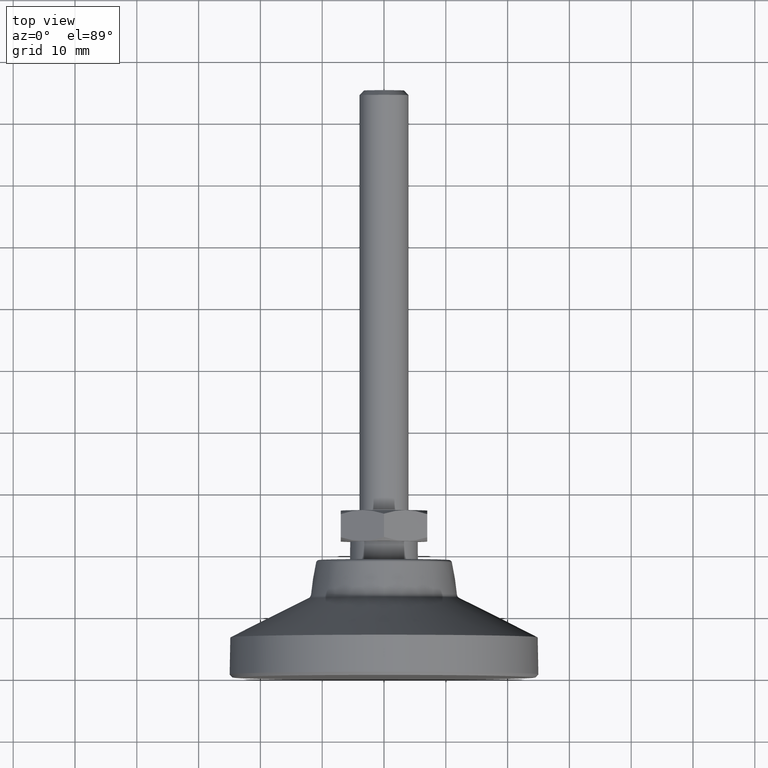
[diagram: clean part render]
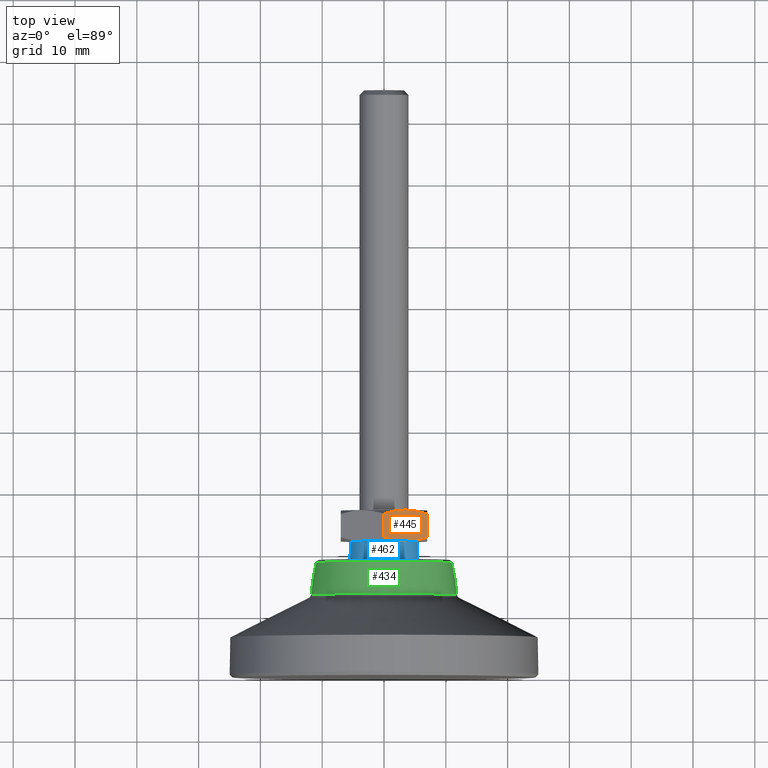
[diagram: same view with three faces highlighted in distinct colors, each labeled with its STEP entity id]
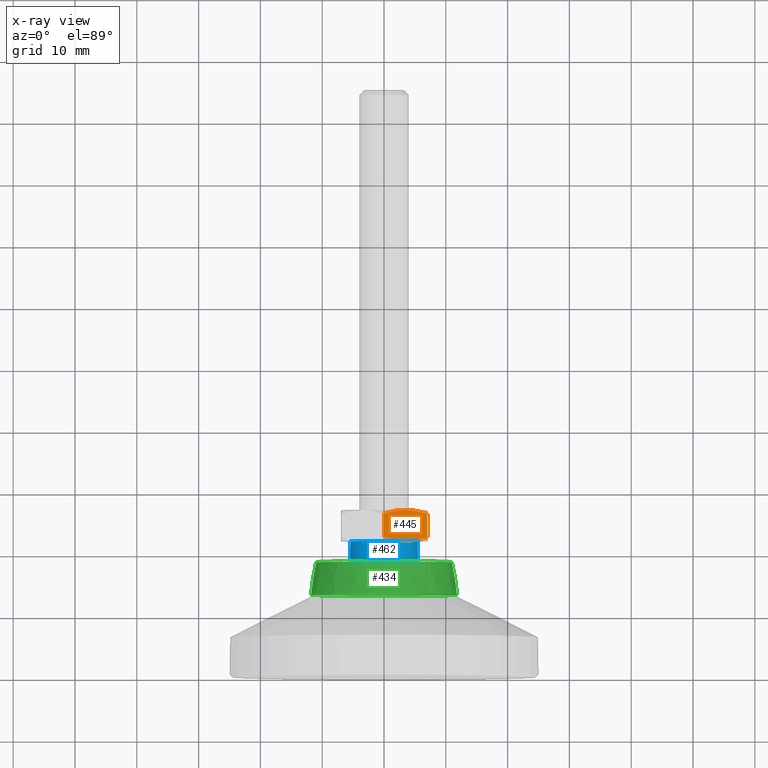
[diagram: x-ray of the same camera — body ghosted, the three highlighted faces saturated]
A machine part, top view with three faces highlighted in distinct colors.
The next image is the same camera in x-ray (body ghosted, the three faces saturated) — at least one of them is partly hidden behind the body in this view.
Their STEP definitions:

[orange] entity #445 — the highlighted planar face has unit normal (0.5, 0, 0.866).
#24=LINE('',#747,#30);
#25=LINE('',#773,#31);
#30=VECTOR('',#588,3.7495704353214);
#31=VECTOR('',#599,3.7495704353214);
#44=(
BOUNDED_CURVE()
B_SPLINE_CURVE(2,(#757,#758,#759),.UNSPECIFIED.,.F.,.F.)
B_SPLINE_CURVE_WITH_KNOTS((3,3),(-1.70144723055341,-1.00298742719398),
 .UNSPECIFIED.)
CURVE()
GEOMETRIC_REPRESENTATION_ITEM()
RATIONAL_B_SPLINE_CURVE((1.74230748895809,1.74230748895809,1.61721543938395))
REPRESENTATION_ITEM('')
);
#45=(
BOUNDED_CURVE()
B_SPLINE_CURVE(2,(#764,#765,#766),.UNSPECIFIED.,.F.,.F.)
B_SPLINE_CURVE_WITH_KNOTS((3,3),(1.00298742719398,1.70144723055341),
 .UNSPECIFIED.)
CURVE()
GEOMETRIC_REPRESENTATION_ITEM()
RATIONAL_B_SPLINE_CURVE((1.61721543938395,1.74230748895809,1.74230748895809))
REPRESENTATION_ITEM('')
);
#46=(
BOUNDED_CURVE()
B_SPLINE_CURVE(2,(#767,#768,#769),.UNSPECIFIED.,.F.,.F.)
B_SPLINE_CURVE_WITH_KNOTS((3,3),(1.70144723055341,2.39990703391284),
 .UNSPECIFIED.)
CURVE()
GEOMETRIC_REPRESENTATION_ITEM()
RATIONAL_B_SPLINE_CURVE((1.74230748895809,1.74230748895809,1.61721543938395))
REPRESENTATION_ITEM('')
);
#47=(
BOUNDED_CURVE()
B_SPLINE_CURVE(2,(#770,#771,#772),.UNSPECIFIED.,.F.,.F.)
B_SPLINE_CURVE_WITH_KNOTS((3,3),(1.00298742719398,1.70144723055341),
 .UNSPECIFIED.)
CURVE()
GEOMETRIC_REPRESENTATION_ITEM()
RATIONAL_B_SPLINE_CURVE((1.61721543938395,1.74230748895809,1.74230748895809))
REPRESENTATION_ITEM('')
);
#119=FACE_OUTER_BOUND('',#162,.T.);
#162=EDGE_LOOP('',(#346,#347,#348,#349,#350,#351));
#229=VERTEX_POINT('',#731);
#232=VERTEX_POINT('',#743);
#233=VERTEX_POINT('',#751);
#235=VERTEX_POINT('',#756);
#236=VERTEX_POINT('',#762);
#237=VERTEX_POINT('',#763);
#272=EDGE_CURVE('',#232,#229,#24,.T.);
#275=EDGE_CURVE('',#235,#233,#44,.T.);
#277=EDGE_CURVE('',#236,#237,#45,.T.);
#278=EDGE_CURVE('',#237,#229,#46,.T.);
#279=EDGE_CURVE('',#232,#235,#47,.T.);
#280=EDGE_CURVE('',#233,#236,#25,.T.);
#346=ORIENTED_EDGE('',*,*,#277,.T.);
#347=ORIENTED_EDGE('',*,*,#278,.T.);
#348=ORIENTED_EDGE('',*,*,#272,.F.);
#349=ORIENTED_EDGE('',*,*,#279,.T.);
#350=ORIENTED_EDGE('',*,*,#275,.T.);
#351=ORIENTED_EDGE('',*,*,#280,.T.);
#423=PLANE('',#497);
#445=ADVANCED_FACE('',(#119),#423,.T.);
#497=AXIS2_PLACEMENT_3D('',#761,#597,#598);
#588=DIRECTION('',(0.,1.,0.));
#597=DIRECTION('center_axis',(0.5,0.,0.866025403784439));
#598=DIRECTION('ref_axis',(0.866025403784439,0.,-0.5));
#599=DIRECTION('',(0.,1.,0.));
#731=CARTESIAN_POINT('',(0.,26.3747852176607,8.08290376865476));
#743=CARTESIAN_POINT('',(0.,22.6252147823393,8.08290376865476));
#747=CARTESIAN_POINT('',(0.,21.9,8.08290376865476));
#751=CARTESIAN_POINT('',(7.,22.6252147823393,4.04145188432738));
#756=CARTESIAN_POINT('',(3.5,22.,6.06217782649107));
#757=CARTESIAN_POINT('Ctrl Pts',(3.5,22.,6.06217782649107));
#758=CARTESIAN_POINT('Ctrl Pts',(5.12435565298319,22.,5.12435565298154));
#759=CARTESIAN_POINT('Ctrl Pts',(7.00000000000261,22.6252147823402,4.04145188432588));
#761=CARTESIAN_POINT('Origin',(0.,21.9,8.08290376865476));
#762=CARTESIAN_POINT('',(7.,26.3747852176607,4.04145188432738));
#763=CARTESIAN_POINT('',(3.5,27.,6.06217782649107));
#764=CARTESIAN_POINT('Ctrl Pts',(7.00000000000261,26.3747852176598,4.04145188432587));
#765=CARTESIAN_POINT('Ctrl Pts',(5.1243556529832,27.,5.12435565298153));
#766=CARTESIAN_POINT('Ctrl Pts',(3.50000000000001,27.,6.06217782649107));
#767=CARTESIAN_POINT('Ctrl Pts',(3.50000000000001,27.,6.06217782649107));
#768=CARTESIAN_POINT('Ctrl Pts',(1.87564434701682,27.,7.0000000000006));
#769=CARTESIAN_POINT('Ctrl Pts',(-2.59745222168538E-12,26.3747852176599,
8.08290376865626));
#770=CARTESIAN_POINT('Ctrl Pts',(-2.608985469736E-12,22.6252147823402,8.08290376865627));
#771=CARTESIAN_POINT('Ctrl Pts',(1.87564434701681,22.,7.00000000000061));
#772=CARTESIAN_POINT('Ctrl Pts',(3.5,22.,6.06217782649107));
#773=CARTESIAN_POINT('',(7.,21.9,4.04145188432738));

[blue] entity #462 — the highlighted cylindrical surface (bore or boss wall) has radius 5.5 mm, axis along (0, 1, 0).
#89=CYLINDRICAL_SURFACE('',#527,5.5);
#102=FACE_BOUND('',#184,.T.);
#136=FACE_OUTER_BOUND('',#183,.T.);
#183=EDGE_LOOP('',(#413));
#184=EDGE_LOOP('',(#414));
#199=CIRCLE('',#499,5.5);
#211=CIRCLE('',#522,5.5);
#238=VERTEX_POINT('',#775);
#249=VERTEX_POINT('',#841);
#281=EDGE_CURVE('',#238,#238,#199,.T.);
#305=EDGE_CURVE('',#249,#249,#211,.T.);
#413=ORIENTED_EDGE('',*,*,#281,.F.);
#414=ORIENTED_EDGE('',*,*,#305,.T.);
#462=ADVANCED_FACE('',(#136,#102),#89,.T.);
#499=AXIS2_PLACEMENT_3D('',#776,#602,#603);
#522=AXIS2_PLACEMENT_3D('',#842,#650,#651);
#527=AXIS2_PLACEMENT_3D('',#847,#660,#661);
#602=DIRECTION('center_axis',(0.,-1.,0.));
#603=DIRECTION('ref_axis',(0.,0.,-1.));
#650=DIRECTION('center_axis',(0.,-1.,0.));
#651=DIRECTION('ref_axis',(0.,0.,-1.));
#660=DIRECTION('center_axis',(0.,1.,0.));
#661=DIRECTION('ref_axis',(0.,0.,-1.));
#775=CARTESIAN_POINT('',(0.,18.3301270189222,-5.5));
#776=CARTESIAN_POINT('Origin',(0.,18.3301270189222,0.));
#841=CARTESIAN_POINT('',(0.,22.,-5.5));
#842=CARTESIAN_POINT('Origin',(0.,22.,0.));
#847=CARTESIAN_POINT('Origin',(0.,0.,0.));

[green] entity #434 — the highlighted conical surface has half-angle 9 deg.
#66=CONICAL_SURFACE('',#477,11.0668038275658,0.15707963267949);
#93=FACE_BOUND('',#147,.T.);
#108=FACE_OUTER_BOUND('',#146,.T.);
#146=EDGE_LOOP('',(#314));
#147=EDGE_LOOP('',(#315));
#190=CIRCLE('',#476,11.0668038275658);
#191=CIRCLE('',#478,11.8900900975816);
#216=VERTEX_POINT('',#684);
#217=VERTEX_POINT('',#687);
#254=EDGE_CURVE('',#216,#216,#190,.T.);
#255=EDGE_CURVE('',#217,#217,#191,.T.);
#314=ORIENTED_EDGE('',*,*,#255,.F.);
#315=ORIENTED_EDGE('',*,*,#254,.T.);
#434=ADVANCED_FACE('',(#108,#93),#66,.T.);
#476=AXIS2_PLACEMENT_3D('',#685,#552,#553);
#477=AXIS2_PLACEMENT_3D('',#686,#554,#555);
#478=AXIS2_PLACEMENT_3D('',#688,#556,#557);
#552=DIRECTION('center_axis',(0.,-1.,0.));
#553=DIRECTION('ref_axis',(0.,0.,-1.));
#554=DIRECTION('center_axis',(0.,-1.,0.));
#555=DIRECTION('ref_axis',(0.,0.,-1.));
#556=DIRECTION('center_axis',(0.,-1.,0.));
#557=DIRECTION('ref_axis',(0.,0.,-1.));
#684=CARTESIAN_POINT('',(0.,18.5782172325201,-11.0668038275658));
#685=CARTESIAN_POINT('Origin',(0.,18.5782172325201,0.));
#686=CARTESIAN_POINT('Origin',(0.,18.5782172325201,0.));
#687=CARTESIAN_POINT('',(0.,13.3801922981972,-11.8900900975816));
#688=CARTESIAN_POINT('Origin',(0.,13.3801922981972,0.));